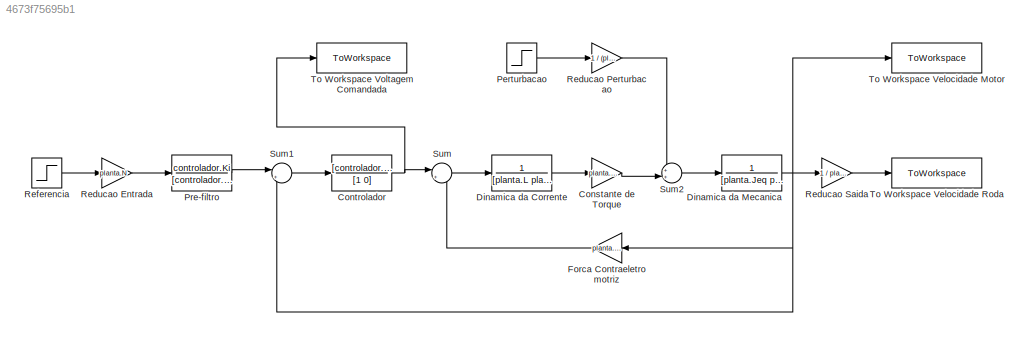
MODEL slx_4673f75695b1
KIND model
CONFIG AbsTol = auto
CONFIG EnableMultiTasking = off
CONFIG FixedStep = 1e-4
CONFIG MaxStep = auto
CONFIG MinStep = auto
CONFIG RelTol = 1e-3
CONFIG SampleTimeConstraint = Unconstrained
CONFIG SolverName = FixedStepAuto
CONFIG StartTime = 0.0
CONFIG StopTime = tempoSimulacao
BLOCK [Gain] Constante de Torque
  Gain = planta.Kt
BLOCK [TransferFcn] Controlador
  Denominator = [1 0]
  Numerator = [controlador.Kp controlador.Ki]
BLOCK [TransferFcn] Dinamica da Corrente
  Denominator = [planta.L planta.R]
  Numerator = 1
BLOCK [TransferFcn] Dinamica da Mecanica
  Denominator = [planta.Jeq planta.Beq]
  Numerator = 1
BLOCK [Gain] Forca Contraeletromotriz
  Gain = planta.Kt
BLOCK [Step] Perturbacao
  After = disturbio.amplitude
  SampleTime = 0
  Time = disturbio.instante
BLOCK [TransferFcn] Pre-filtro
  Denominator = [controlador.Kp controlador.Ki]
  Numerator = controlador.Ki
BLOCK [Gain] Reducao Entrada
  Gain = planta.N
BLOCK [Gain] Reducao Perturbacao
  Gain = 1 / (planta.N * planta.eta)
BLOCK [Gain] Reducao Saida
  Gain = 1 / planta.N
BLOCK [Step] Referencia
  After = referencia.amplitude
  SampleTime = 0
  Time = referencia.instante
BLOCK [Sum] Sum
  Inputs = |+-
  Ports = [2, 1]
BLOCK [Sum] Sum1
  Inputs = |+-
  Ports = [2, 1]
BLOCK [Sum] Sum2
  Inputs = ++|
  Ports = [2, 1]
BLOCK [ToWorkspace] To Workspace Velocidade Motor
  FixptAsFi = on
  MaxDataPoints = inf
  Ports = [1]
  SampleTime = -1
  SaveFormat = Structure With Time
  VariableName = wMotor
BLOCK [ToWorkspace] To Workspace Velocidade Roda
  FixptAsFi = on
  MaxDataPoints = inf
  Ports = [1]
  SampleTime = -1
  SaveFormat = Structure With Time
  VariableName = wRoda
BLOCK [ToWorkspace] To Workspace Voltagem Comandada
  FixptAsFi = on
  MaxDataPoints = inf
  Ports = [1]
  SampleTime = -1
  SaveFormat = Structure With Time
  VariableName = V
LINE Constante de Torque:1 -> Sum2:2
NET Controlador:1 -> Sum:1, To Workspace Voltagem Comandada:1
LINE Dinamica da Corrente:1 -> Constante de Torque:1
NET Dinamica da Mecanica:1 -> Forca Contraeletromotriz:1, Reducao Saida:1, Sum1:2, To Workspace Velocidade Motor:1
LINE Forca Contraeletromotriz:1 -> Sum:2
LINE Perturbacao:1 -> Reducao Perturbacao:1
LINE Pre-filtro:1 -> Sum1:1
LINE Reducao Entrada:1 -> Pre-filtro:1
LINE Reducao Perturbacao:1 -> Sum2:1
LINE Reducao Saida:1 -> To Workspace Velocidade Roda:1
LINE Referencia:1 -> Reducao Entrada:1
LINE Sum1:1 -> Controlador:1
LINE Sum2:1 -> Dinamica da Mecanica:1
LINE Sum:1 -> Dinamica da Corrente:1
note: NET lines group one-source signal fan-out (src -> all destinations, sorted); 1:1 wires keep LINE
